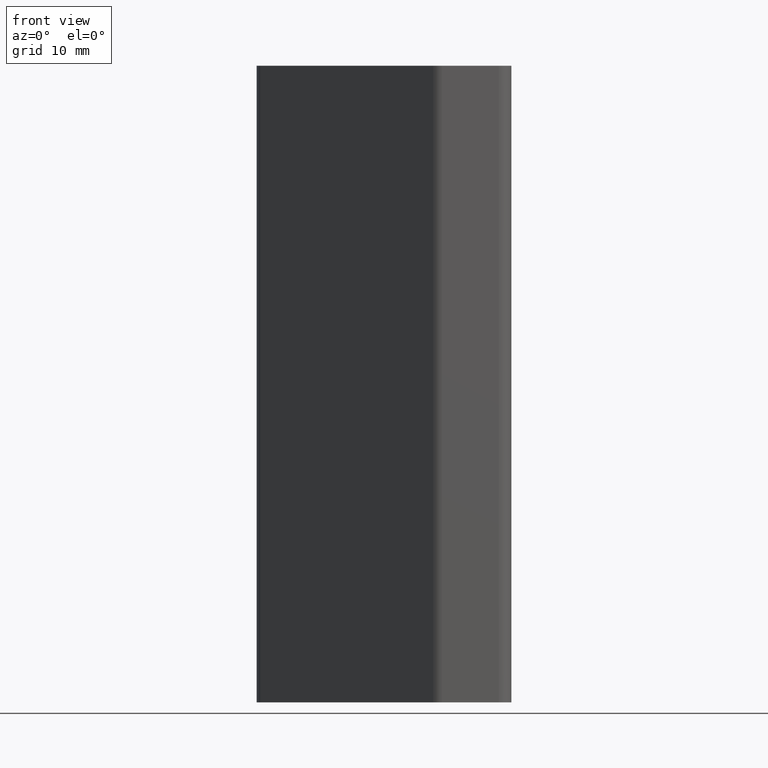
[diagram: clean part render]
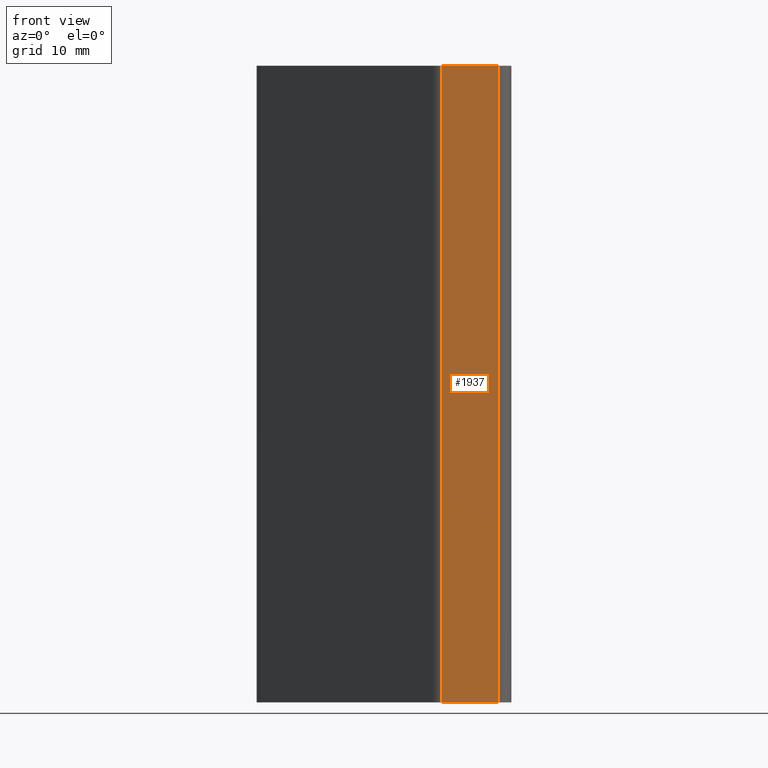
[diagram: same view with one face highlighted and labeled with its STEP entity id]
A machine part, front view. The second image highlights one B-rep face of the part: STEP entity #1937.
In plain terms, the highlighted planar face has unit normal (0, -1, 0).
Its self-contained STEP definition (entity closure, byte-faithful):
#73=PLANE('',#2128);
#170=FACE_OUTER_BOUND('',#272,.T.);
#272=EDGE_LOOP('',(#1697,#1698,#1699,#1700));
#331=LINE('',#2872,#523);
#464=LINE('',#3253,#656);
#468=LINE('',#3269,#660);
#469=LINE('',#3272,#661);
#523=VECTOR('',#2301,100.);
#656=VECTOR('',#2672,8.88734421661766);
#660=VECTOR('',#2694,100.);
#661=VECTOR('',#2699,8.88734421661766);
#810=VERTEX_POINT('',#2868);
#811=VERTEX_POINT('',#2870);
#940=VERTEX_POINT('',#3252);
#943=VERTEX_POINT('',#3268);
#1027=EDGE_CURVE('',#810,#811,#331,.T.);
#1216=EDGE_CURVE('',#940,#810,#464,.T.);
#1225=EDGE_CURVE('',#943,#940,#468,.T.);
#1227=EDGE_CURVE('',#943,#811,#469,.T.);
#1697=ORIENTED_EDGE('',*,*,#1027,.T.);
#1698=ORIENTED_EDGE('',*,*,#1227,.F.);
#1699=ORIENTED_EDGE('',*,*,#1225,.T.);
#1700=ORIENTED_EDGE('',*,*,#1216,.T.);
#1937=ADVANCED_FACE('',(#170),#73,.T.);
#2128=AXIS2_PLACEMENT_3D('',#3271,#2697,#2698);
#2301=DIRECTION('',(0.,0.,-1.));
#2672=DIRECTION('',(-1.,0.,0.));
#2694=DIRECTION('',(0.,0.,1.));
#2697=DIRECTION('center_axis',(0.,-1.,0.));
#2698=DIRECTION('ref_axis',(1.,0.,0.));
#2699=DIRECTION('',(-1.,0.,0.));
#2868=CARTESIAN_POINT('',(9.11265578338234,-20.,100.));
#2870=CARTESIAN_POINT('',(9.11265578338234,-20.,0.));
#2872=CARTESIAN_POINT('',(9.11265578338233,-20.,0.));
#3252=CARTESIAN_POINT('',(18.,-20.,100.));
#3253=CARTESIAN_POINT('',(-9.,-20.,100.));
#3268=CARTESIAN_POINT('',(18.,-20.,0.));
#3269=CARTESIAN_POINT('',(18.,-20.,0.));
#3271=CARTESIAN_POINT('Origin',(-18.,-20.,0.));
#3272=CARTESIAN_POINT('',(-9.,-20.,0.));